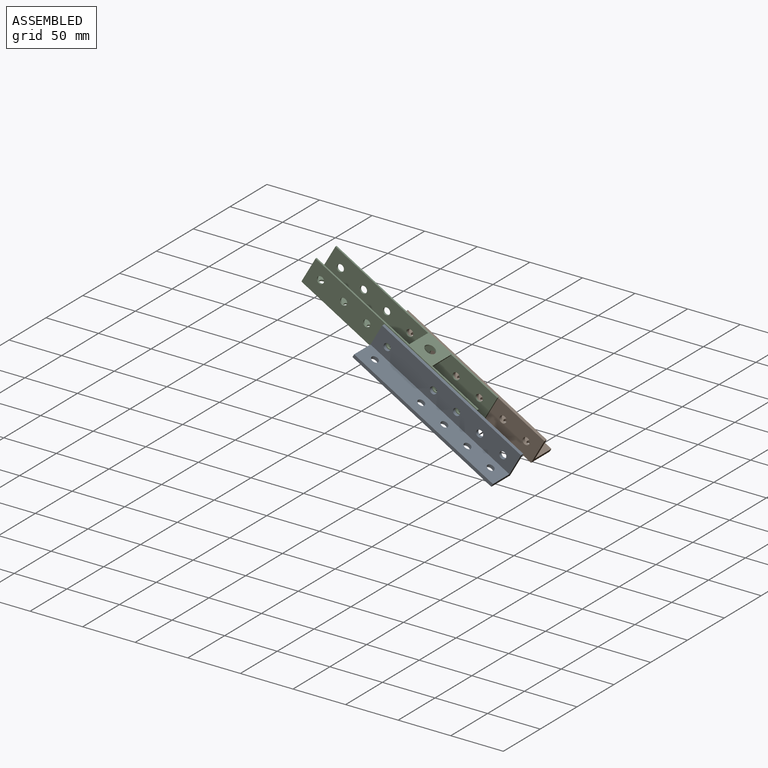
[diagram: assembled view]
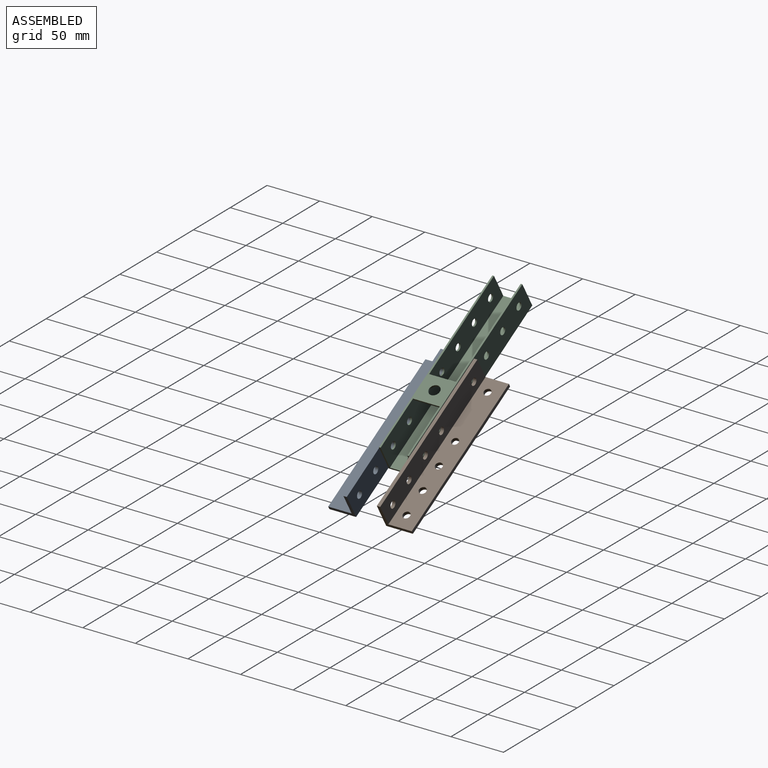
[diagram: assembled view, second angle]
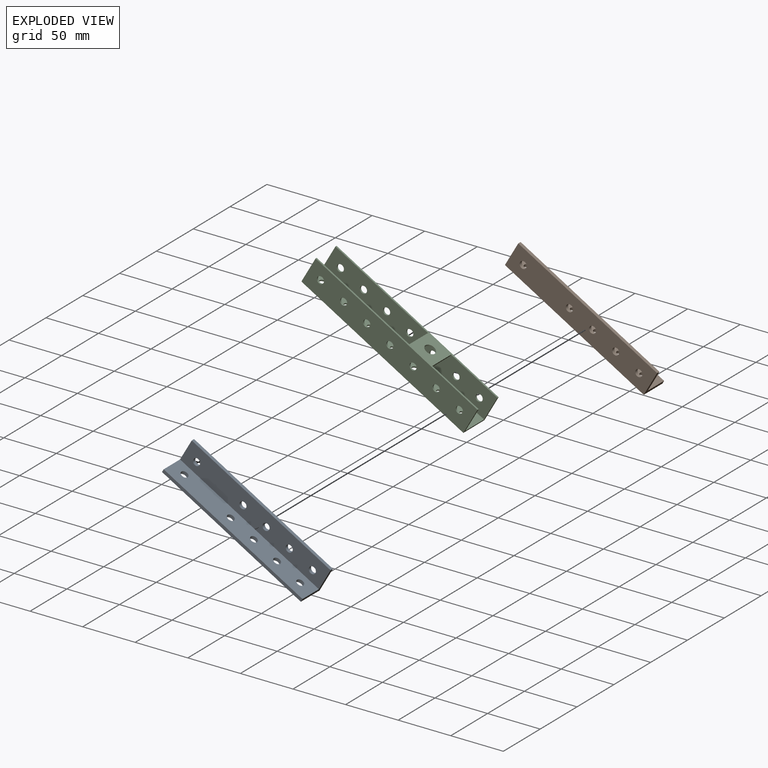
[diagram: exploded view]
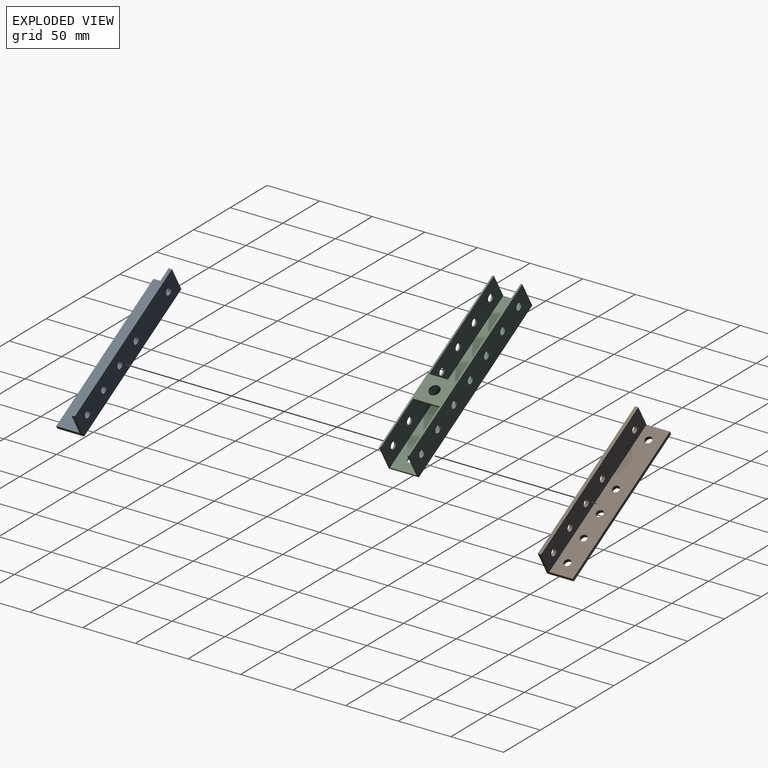
[diagram: exploded view, second angle]
ASSEMBLY  parts=3 mates=2
PART A: 18 faces, bbox 152.4x25.4x25.4 mm
  f0: plane 152.4x22.23mm, normal (0,1,0), area 3207.8mm2, adj f1,f5,f6,f7,f9,f11,f13,f14
  f1: plane 152.4x3.18mm, normal (0,0,1), area 483.9mm2, adj f0,f2,f6,f7
  f2: plane 152.4x25.4mm, normal (0,-1,0), area 3691.7mm2, adj f1,f3,f6,f7,f9,f11,f13,f14
  f3: plane 152.4x25.4mm, normal (0,0,-1), area 3691.7mm2, adj f2,f4,f6,f7,f8,f10,f12,f15
  f4: plane 152.4x3.18mm, normal (0,1,0), area 483.9mm2, adj f3,f5,f6,f7
  f5: plane 152.4x22.23mm, normal (0,0,1), area 3207.8mm2, adj f0,f4,f6,f7,f8,f10,f12,f15
  f6: plane 25.4x25.4mm, normal (1,0,0), area 151.2mm2, adj f0,f1,f2,f3,f4,f5
  f7: plane 25.4x25.4mm, normal (-1,0,0), area 151.2mm2, adj f0,f1,f2,f3,f4,f5
  f8: cylinder r=3.38mm len=6.76mm, axis (0,0,-1), area 67.4mm2, adj f3,f5
  f9: cylinder r=3.38mm len=6.76mm, axis (0,-1,0), area 67.4mm2, adj f0,f2
  f10: cylinder r=3.38mm len=6.76mm, axis (0,0,-1), area 67.4mm2, adj f3,f5
  f11: cylinder r=3.38mm len=6.76mm, axis (0,-1,0), area 67.4mm2, adj f0,f2
  f12: cylinder r=3.38mm len=6.76mm, axis (0,0,-1), area 67.4mm2, adj f3,f5
  f13: cylinder r=3.38mm len=6.76mm, axis (0,-1,0), area 67.4mm2, adj f0,f2
  f14: cylinder r=3.38mm len=6.76mm, axis (0,-1,0), area 67.4mm2, adj f0,f2
  f15: cylinder r=3.38mm len=6.76mm, axis (0,0,-1), area 67.4mm2, adj f3,f5
  f16: cylinder r=3.38mm len=6.76mm, axis (0,-1,0), area 67.4mm2, adj f0,f2
  f17: cylinder r=3.38mm len=6.76mm, axis (0,0,-1), area 67.4mm2, adj f3,f5
PART B: same geometry as A
PART C: 34 faces, bbox 177.8x28.6x27 mm
  f0: plane 177.8x28.58mm, normal (0,0,1), area 4741.6mm2, adj f1,f6,f7,f8,f9,f14,f29,f30
  f1: plane 177.8x26.99mm, normal (0,-1,0), area 4547.4mm2, adj f0,f5,f7,f14,f16,f18,f20,f22
  f2: plane 177.8x25.4mm, normal (0,1,0), area 4224.8mm2, adj f3,f5,f7,f10,f11,f12,f14,f16
  f3: plane 177.8x25.4mm, normal (0,0,-1), area 4177.1mm2, adj f2,f4,f7,f8,f9,f14,f29,f30
  f4: plane 177.8x25.4mm, normal (0,-1,0), area 4224.8mm2, adj f3,f5,f7,f10,f11,f12,f14,f15
  f5: plane 177.8x28.58mm, normal (0,0,-1), area 1129.8mm2, adj f1,f2,f4,f6,f7,f10,f11,f13
  f6: plane 177.8x26.99mm, normal (0,1,0), area 4547.4mm2, adj f0,f5,f7,f14,f15,f17,f19,f21
  f7: plane 28.58x26.99mm, normal (1,0,0), area 126mm2, adj f0,f1,f2,f3,f4,f5,f6
  f8: cylinder r=5.04mm len=10.08mm, axis (0,0,1), area 50.3mm2, adj f0,f3
  f9: cylinder r=5.04mm len=10.08mm, axis (0,0,1), area 50.3mm2, adj f0,f3
  f10: plane 25.4x1.59mm, normal (1,0,0), area 40.3mm2, adj f2,f4,f5,f12
  f11: plane 25.4x1.59mm, normal (-1,0,0), area 40.3mm2, adj f2,f4,f5,f12
  f12: plane 25.4x25.4mm, normal (0,0,1), area 565.3mm2, adj f2,f4,f10,f11,f13
  f13: cylinder r=5.04mm len=10.08mm, axis (0,0,-1), area 50.3mm2, adj f5,f12
  f14: plane 28.58x26.99mm, normal (-1,0,0), area 126mm2, adj f0,f1,f2,f3,f4,f5,f6
  f15: cylinder r=3.38mm len=6.76mm, axis (0,1,0), area 33.7mm2, adj f4,f6
  f16: cylinder r=3.38mm len=6.76mm, axis (0,1,0), area 33.7mm2, adj f1,f2
  f17: cylinder r=3.38mm len=6.76mm, axis (0,1,0), area 33.7mm2, adj f4,f6
  f18: cylinder r=3.38mm len=6.76mm, axis (0,1,0), area 33.7mm2, adj f1,f2
  f19: cylinder r=3.38mm len=6.76mm, axis (0,1,0), area 33.7mm2, adj f4,f6
  f20: cylinder r=3.38mm len=6.76mm, axis (0,1,0), area 33.7mm2, adj f1,f2
  f21: cylinder r=3.38mm len=6.76mm, axis (0,1,0), area 33.7mm2, adj f4,f6
  f22: cylinder r=3.38mm len=6.76mm, axis (0,1,0), area 33.7mm2, adj f1,f2
  f23: cylinder r=3.38mm len=6.76mm, axis (0,1,0), area 33.7mm2, adj f4,f6
  f24: cylinder r=3.38mm len=6.76mm, axis (0,1,0), area 33.7mm2, adj f1,f2
  f25: cylinder r=3.38mm len=6.76mm, axis (0,1,0), area 33.7mm2, adj f4,f6
  f26: cylinder r=3.38mm len=6.76mm, axis (0,1,0), area 33.7mm2, adj f1,f2
  f27: cylinder r=3.38mm len=6.76mm, axis (0,1,0), area 33.7mm2, adj f4,f6
  f28: cylinder r=3.38mm len=6.76mm, axis (0,1,0), area 33.7mm2, adj f1,f2
  f29: cylinder r=3.38mm len=6.76mm, axis (0,0,1), area 33.7mm2, adj f0,f3
  f30: cylinder r=3.38mm len=6.76mm, axis (0,0,1), area 33.7mm2, adj f0,f3
  f31: cylinder r=3.38mm len=6.76mm, axis (0,0,1), area 33.7mm2, adj f0,f3
  f32: cylinder r=3.38mm len=6.76mm, axis (0,0,1), area 33.7mm2, adj f0,f3
  f33: cylinder r=3.38mm len=6.76mm, axis (0,0,1), area 33.7mm2, adj f0,f3
PLACE A rot(axis=(-0.26,0,-0.97),180deg) t=(184,2.57,-96.88)mm
PLACE B rot(axis=(-0.19,-0.69,-0.69),158.9deg) t=(225.51,67.47,-24.99)mm
PLACE C rot(axis=(0,-1,0),150deg) t=(1082.33,76.53,-572.94)mm
MATE fastened B.f8 <-> C.f6  axis (0,-1,0) through (103.04,90.81,-8.52)mm
MATE fastened A.f9 <-> C.f1  axis (0,1,0) through (103.04,62.24,-8.52)mm
